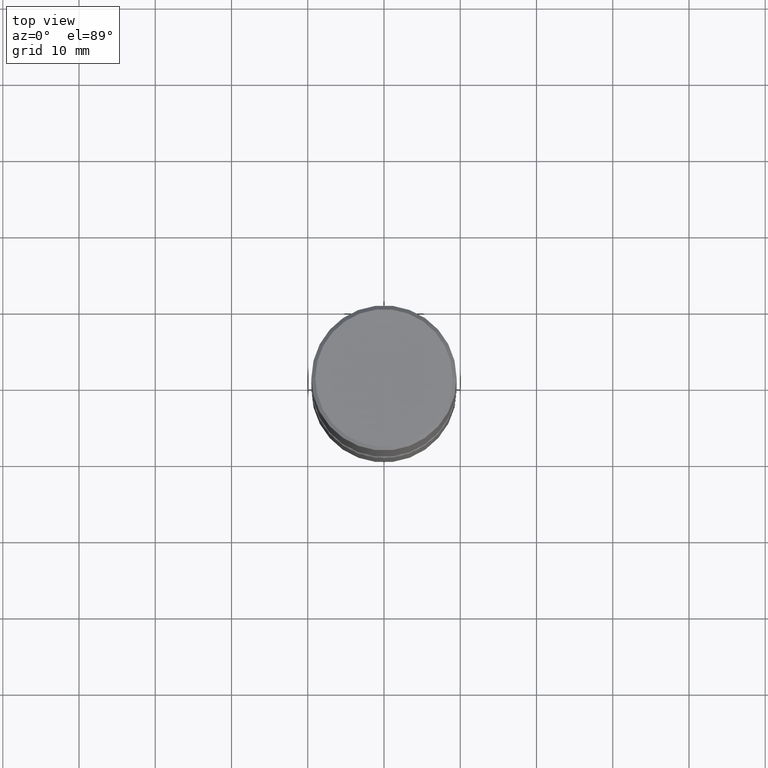
[diagram: clean part render]
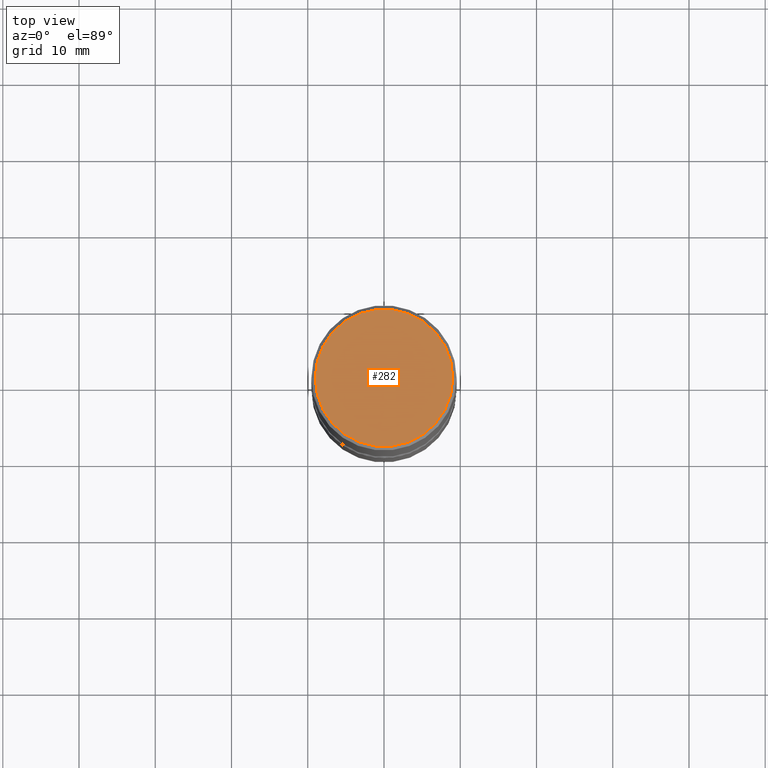
[diagram: same view with one face highlighted and labeled with its STEP entity id]
A machine part, top view. The second image highlights one B-rep face of the part: STEP entity #282.
In plain terms, the highlighted planar face has unit normal (0, -0, -1).
Its self-contained STEP definition (entity closure, byte-faithful):
#16 = CARTESIAN_POINT ( 'NONE',  ( -1.043851414335219820E-46, 1.490343170380447200E-32, 4.268512490100411279E-18 ) ) ;
#31 = EDGE_LOOP ( 'NONE', ( #319, #399 ) ) ;
#36 = CARTESIAN_POINT ( 'NONE',  ( -1.043851414335219820E-46, 1.490343170380447200E-32, 4.268512490100411279E-18 ) ) ;
#94 = DIRECTION ( 'NONE',  ( 1.000000000000000000, -6.982962677686266711E-15, 4.876231632511985941E-29 ) ) ;
#102 = CIRCLE ( 'NONE', #446, 0.3550000000000001488 ) ;
#131 = PLANE ( 'NONE',  #243 ) ;
#176 = DIRECTION ( 'NONE',  ( -1.000000000000000000, 6.982962677686265922E-15, -4.876176775795935793E-29 ) ) ;
#181 = FACE_OUTER_BOUND ( 'NONE', #31, .T. ) ;
#243 = AXIS2_PLACEMENT_3D ( 'NONE', #347, #479, #176 ) ;
#258 = CARTESIAN_POINT ( 'NONE',  ( -0.3550000000000001488, 2.513866563967057041E-15, 4.268512490082953109E-18 ) ) ;
#274 = EDGE_CURVE ( 'NONE', #358, #275, #102, .T. ) ;
#275 = VERTEX_POINT ( 'NONE', #258 ) ;
#282 = ADVANCED_FACE ( 'NONE', ( #181 ), #131, .F. ) ;
#296 = DIRECTION ( 'NONE',  ( -2.445468806185136597E-29, 3.491481338843145583E-15, 1.000000000000000000 ) ) ;
#312 = DIRECTION ( 'NONE',  ( 1.000000000000000000, -6.982962677686266711E-15, 4.876231632511985941E-29 ) ) ;
#319 = ORIENTED_EDGE ( 'NONE', *, *, #484, .T. ) ;
#342 = CARTESIAN_POINT ( 'NONE',  ( 0.3550000000000001488, -2.538996582575041837E-15, 4.268512490117958041E-18 ) ) ;
#347 = CARTESIAN_POINT ( 'NONE',  ( 2.478951750578625787E-15, 0.3550000000000001488, -1.237341619044267019E-15 ) ) ;
#358 = VERTEX_POINT ( 'NONE', #342 ) ;
#383 = AXIS2_PLACEMENT_3D ( 'NONE', #16, #450, #312 ) ;
#399 = ORIENTED_EDGE ( 'NONE', *, *, #274, .T. ) ;
#446 = AXIS2_PLACEMENT_3D ( 'NONE', #36, #296, #94 ) ;
#450 = DIRECTION ( 'NONE',  ( -2.445468806185136597E-29, 3.491481338843145583E-15, 1.000000000000000000 ) ) ;
#479 = DIRECTION ( 'NONE',  ( 2.438088387897960049E-29, -3.491481338843145188E-15, -1.000000000000000000 ) ) ;
#482 = CIRCLE ( 'NONE', #383, 0.3550000000000001488 ) ;
#484 = EDGE_CURVE ( 'NONE', #275, #358, #482, .T. ) ;